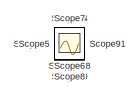
[diagram: root canvas - part 1/2, top left region]
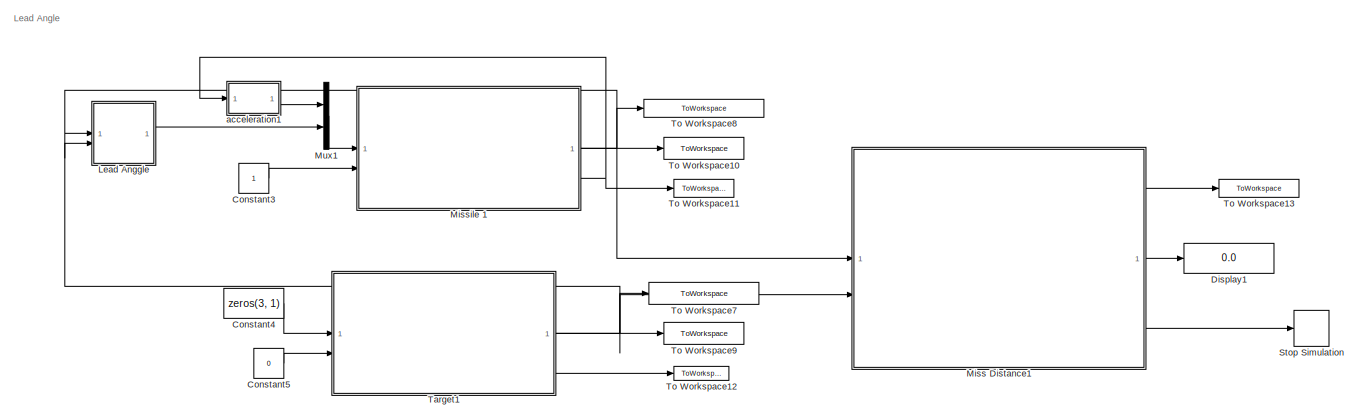
[diagram: root canvas - part 2/2, bottom center region]
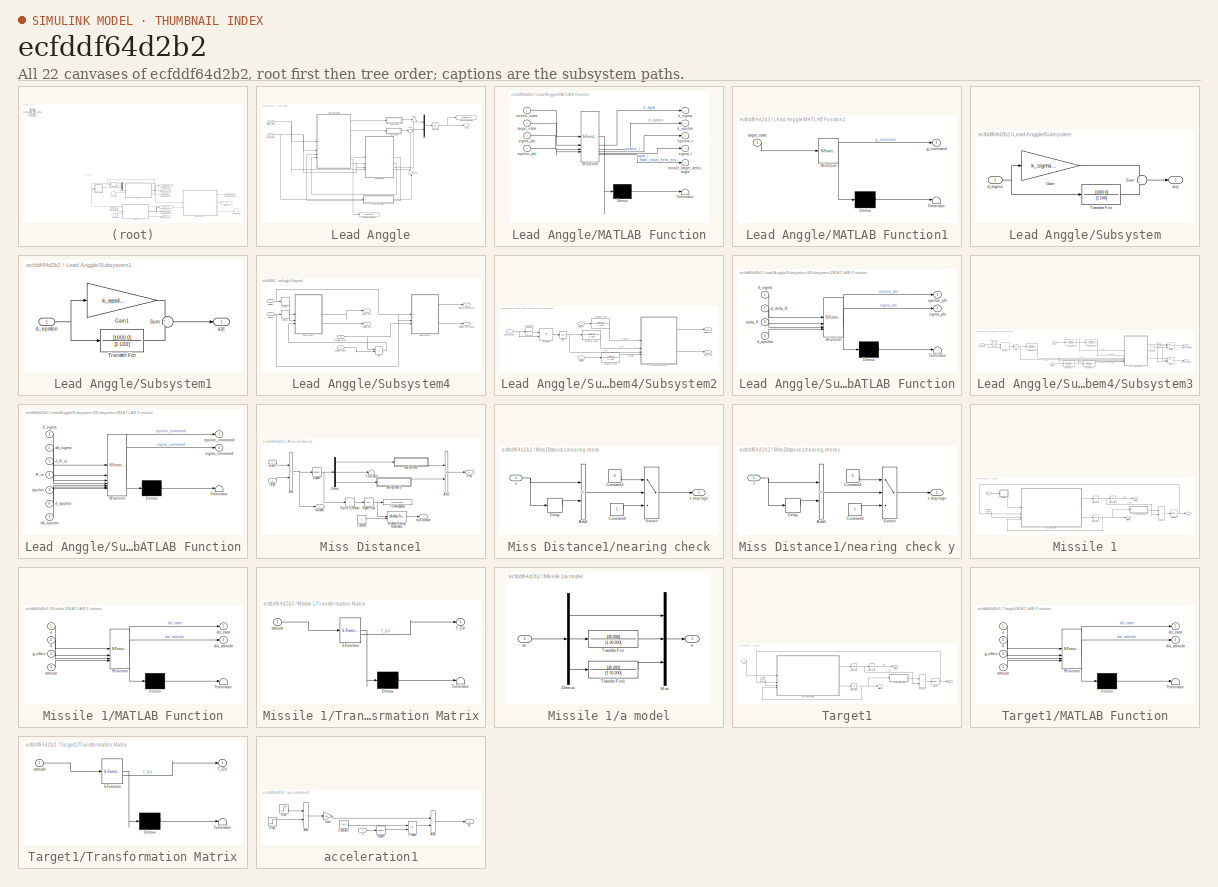
[diagram: thumbnail index - all 22 canvases of the model, root first then tree order]
MODEL slx_ecfddf64d2b2
KIND model
CONFIG AbsTol = auto
CONFIG EnableMultiTasking = off
CONFIG FixedStep = 0.002
CONFIG InitFcn = init; % init script
CONFIG MaxStep = auto
CONFIG MinStep = auto
CONFIG RelTol = 1e-3
CONFIG SampleTimeConstraint = Unconstrained
CONFIG SolverName = ode4
CONFIG StartTime = 0.0
CONFIG StopTime = inf
BLOCK [Constant] Constant3
BLOCK [Constant] Constant4
  Value = zeros(3, 1)
BLOCK [Constant] Constant5
  Value = 0
BLOCK [Display] Display1
  Decimation = 1
BLOCK [SubSystem] Lead Anggle
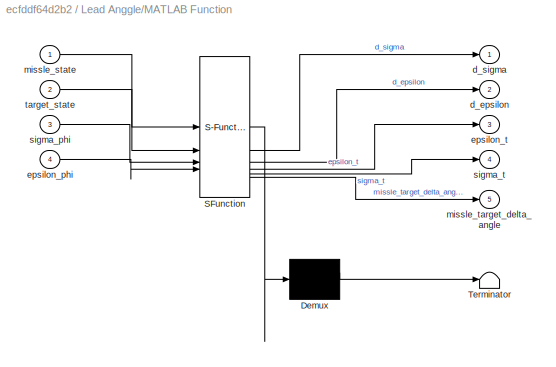
BLOCK [SubSystem] Lead Anggle/MATLAB Function
  ErrorFcn = Stateflow.Translate.translate
  LibrarySourceBlock = simulink/User-Defined\nFunctions/MATLAB Function
  PermitHierarchicalResolution = ExplicitOnly
  SFBlockType = MATLAB Function
  TreatAsAtomicUnit = on
BLOCK [Demux] Lead Anggle/MATLAB Function/ Demux 
  Outputs = 1
BLOCK [S-Function] Lead Anggle/MATLAB Function/ SFunction 
  EnableBusSupport = on
  FunctionName = sf_sfun
  PortCounts = [4 6]
  SFcnIsStateOwnerBlock = off
  SFunctionDeploymentMode = off
  Tag = Stateflow S-Function 14
BLOCK [Terminator] Lead Anggle/MATLAB Function/ Terminator 
BLOCK [Outport] Lead Anggle/MATLAB Function/d_epsilon
  Port = 2
BLOCK [Outport] Lead Anggle/MATLAB Function/d_sigma
BLOCK [Inport] Lead Anggle/MATLAB Function/epsilon_phi
  Port = 4
BLOCK [Outport] Lead Anggle/MATLAB Function/epsilon_t
  Port = 3
BLOCK [Inport] Lead Anggle/MATLAB Function/missle_state
BLOCK [Outport] Lead Anggle/MATLAB Function/missle_target_delta_angle
  Port = 5
BLOCK [Inport] Lead Anggle/MATLAB Function/sigma_phi
  Port = 3
BLOCK [Outport] Lead Anggle/MATLAB Function/sigma_t
  Port = 4
BLOCK [Inport] Lead Anggle/MATLAB Function/target_state
  Port = 2
BLOCK [SubSystem] Lead Anggle/MATLAB Function1
  ErrorFcn = Stateflow.Translate.translate
  LibrarySourceBlock = simulink/User-Defined\nFunctions/MATLAB Function
  PermitHierarchicalResolution = ExplicitOnly
  SFBlockType = MATLAB Function
  TreatAsAtomicUnit = on
BLOCK [Demux] Lead Anggle/MATLAB Function1/ Demux 
  Outputs = 1
BLOCK [S-Function] Lead Anggle/MATLAB Function1/ SFunction 
  EnableBusSupport = on
  FunctionName = sf_sfun
  PortCounts = [1 2]
  SFcnIsStateOwnerBlock = off
  SFunctionDeploymentMode = off
  Tag = Stateflow S-Function 15
BLOCK [Terminator] Lead Anggle/MATLAB Function1/ Terminator 
BLOCK [Outport] Lead Anggle/MATLAB Function1/g_command
BLOCK [Inport] Lead Anggle/MATLAB Function1/target_state
BLOCK [Mux] Lead Anggle/Mux
  DisplayOption = bar
  Inputs = 2
BLOCK [Saturate] Lead Anggle/Saturation
  LowerLimit = -5*9.81
  UpperLimit = 5*9.81
BLOCK [SubSystem] Lead Anggle/Subsystem
BLOCK [Gain] Lead Anggle/Subsystem/Gain
  Gain = k_sigma_lead_angle
BLOCK [Sum] Lead Anggle/Subsystem/Sum
  Inputs = +|+
BLOCK [TransferFcn] Lead Anggle/Subsystem/Transfer Fcn
  Denominator = [1 100]
  Numerator = [1000 0]
BLOCK [Outport] Lead Anggle/Subsystem/acy
BLOCK [Inport] Lead Anggle/Subsystem/d_sigma
BLOCK [SubSystem] Lead Anggle/Subsystem1
BLOCK [Gain] Lead Anggle/Subsystem1/Gain1
  Gain = k_epsilon_lead_angle
BLOCK [Sum] Lead Anggle/Subsystem1/Sum
  Inputs = +|+
BLOCK [TransferFcn] Lead Anggle/Subsystem1/Transfer Fcn
  Denominator = [1 100]
  Numerator = [1000 0]
BLOCK [Outport] Lead Anggle/Subsystem1/azc
BLOCK [Inport] Lead Anggle/Subsystem1/d_epsilon
BLOCK [SubSystem] Lead Anggle/Subsystem4
BLOCK [Sum] Lead Anggle/Subsystem4/Add
  IconShape = rectangular
  Inputs = -+
BLOCK [Delay] Lead Anggle/Subsystem4/Delay
  DelayLength = 1
  InputPortMap = u0
BLOCK [Delay] Lead Anggle/Subsystem4/Delay1
  DelayLength = 1
  InputPortMap = u0
BLOCK [SubSystem] Lead Anggle/Subsystem4/Subsystem2
BLOCK [SubSystem] Lead Anggle/Subsystem4/Subsystem2/MATLAB Function
  ErrorFcn = Stateflow.Translate.translate
  LibrarySourceBlock = simulink/User-Defined\nFunctions/MATLAB Function
  PermitHierarchicalResolution = ExplicitOnly
  SFBlockType = MATLAB Function
  TreatAsAtomicUnit = on
BLOCK [Demux] Lead Anggle/Subsystem4/Subsystem2/MATLAB Function/ Demux 
  Outputs = 1
BLOCK [S-Function] Lead Anggle/Subsystem4/Subsystem2/MATLAB Function/ SFunction 
  EnableBusSupport = on
  FunctionName = sf_sfun
  PortCounts = [4 3]
  SFcnIsStateOwnerBlock = off
  SFunctionDeploymentMode = off
  Tag = Stateflow S-Function 16
BLOCK [Terminator] Lead Anggle/Subsystem4/Subsystem2/MATLAB Function/ Terminator 
BLOCK [Inport] Lead Anggle/Subsystem4/Subsystem2/MATLAB Function/d_delta_R
  Port = 2
BLOCK [Inport] Lead Anggle/Subsystem4/Subsystem2/MATLAB Function/d_epsilon
  Port = 4
BLOCK [Inport] Lead Anggle/Subsystem4/Subsystem2/MATLAB Function/d_sigma
BLOCK [Inport] Lead Anggle/Subsystem4/Subsystem2/MATLAB Function/delta_R
  Port = 3
BLOCK [Outport] Lead Anggle/Subsystem4/Subsystem2/MATLAB Function/epsilon_phi
BLOCK [Outport] Lead Anggle/Subsystem4/Subsystem2/MATLAB Function/sigma_phi
  Port = 2
BLOCK [Product] Lead Anggle/Subsystem4/Subsystem2/Product
  Multiplication = Matrix(*)
BLOCK [Sqrt] Lead Anggle/Subsystem4/Subsystem2/Sqrt
BLOCK [TransferFcn] Lead Anggle/Subsystem4/Subsystem2/Transfer Fcn
  Denominator = [1 100]
  Numerator = [100 0]
BLOCK [TransferFcn] Lead Anggle/Subsystem4/Subsystem2/Transfer Fcn2
  Denominator = [1 100]
  Numerator = [100 0]
BLOCK [TransferFcn] Lead Anggle/Subsystem4/Subsystem2/Transfer Fcn4
  Denominator = [1 100]
  Numerator = [100 0]
BLOCK [Math] Lead Anggle/Subsystem4/Subsystem2/Transpose
  Operator = transpose
BLOCK [Inport] Lead Anggle/Subsystem4/Subsystem2/delta_state
  Port = 3
BLOCK [Inport] Lead Anggle/Subsystem4/Subsystem2/epsilon
BLOCK [Outport] Lead Anggle/Subsystem4/Subsystem2/epsilon phi
  Port = 2
BLOCK [Inport] Lead Anggle/Subsystem4/Subsystem2/sigma
  Port = 2
BLOCK [Outport] Lead Anggle/Subsystem4/Subsystem2/sigma phi
BLOCK [SubSystem] Lead Anggle/Subsystem4/Subsystem3
BLOCK [Clock] Lead Anggle/Subsystem4/Subsystem3/Clock
BLOCK [Constant] Lead Anggle/Subsystem4/Subsystem3/Constant
  Value = 0
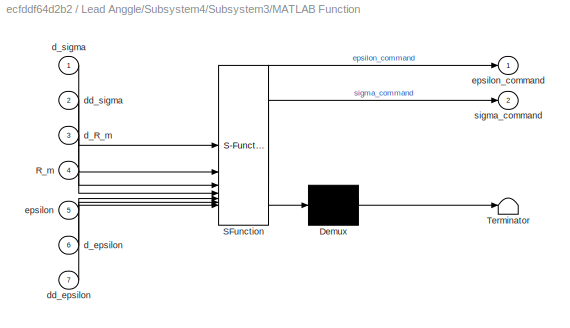
BLOCK [SubSystem] Lead Anggle/Subsystem4/Subsystem3/MATLAB Function
  ErrorFcn = Stateflow.Translate.translate
  LibrarySourceBlock = simulink/User-Defined\nFunctions/MATLAB Function
  PermitHierarchicalResolution = ExplicitOnly
  SFBlockType = MATLAB Function
  TreatAsAtomicUnit = on
BLOCK [Demux] Lead Anggle/Subsystem4/Subsystem3/MATLAB Function/ Demux 
  Outputs = 1
BLOCK [S-Function] Lead Anggle/Subsystem4/Subsystem3/MATLAB Function/ SFunction 
  EnableBusSupport = on
  FunctionName = sf_sfun
  PortCounts = [7 3]
  SFcnIsStateOwnerBlock = off
  SFunctionDeploymentMode = off
  Tag = Stateflow S-Function 11
BLOCK [Terminator] Lead Anggle/Subsystem4/Subsystem3/MATLAB Function/ Terminator 
BLOCK [Inport] Lead Anggle/Subsystem4/Subsystem3/MATLAB Function/R_m
  Port = 4
BLOCK [Inport] Lead Anggle/Subsystem4/Subsystem3/MATLAB Function/d_R_m
  Port = 3
BLOCK [Inport] Lead Anggle/Subsystem4/Subsystem3/MATLAB Function/d_epsilon
  Port = 6
BLOCK [Inport] Lead Anggle/Subsystem4/Subsystem3/MATLAB Function/d_sigma
BLOCK [Inport] Lead Anggle/Subsystem4/Subsystem3/MATLAB Function/dd_epsilon
  Port = 7
BLOCK [Inport] Lead Anggle/Subsystem4/Subsystem3/MATLAB Function/dd_sigma
  Port = 2
BLOCK [Inport] Lead Anggle/Subsystem4/Subsystem3/MATLAB Function/epsilon
  Port = 5
BLOCK [Outport] Lead Anggle/Subsystem4/Subsystem3/MATLAB Function/epsilon_command
BLOCK [Outport] Lead Anggle/Subsystem4/Subsystem3/MATLAB Function/sigma_command
  Port = 2
BLOCK [Product] Lead Anggle/Subsystem4/Subsystem3/Product
  Multiplication = Matrix(*)
BLOCK [Sqrt] Lead Anggle/Subsystem4/Subsystem3/Sqrt
BLOCK [Switch] Lead Anggle/Subsystem4/Subsystem3/Switch
  Criteria = u2 > Threshold
  InputSameDT = off
  SaturateOnIntegerOverflow = off
  Threshold = 0.2
BLOCK [Switch] Lead Anggle/Subsystem4/Subsystem3/Switch1
  Criteria = u2 > Threshold
  InputSameDT = off
  SaturateOnIntegerOverflow = off
  Threshold = 0.2
BLOCK [TransferFcn] Lead Anggle/Subsystem4/Subsystem3/Transfer Fcn
  Denominator = [1 100]
  Numerator = [100 0]
BLOCK [TransferFcn] Lead Anggle/Subsystem4/Subsystem3/Transfer Fcn1
  Denominator = [1 100]
  Numerator = [100 0]
BLOCK [TransferFcn] Lead Anggle/Subsystem4/Subsystem3/Transfer Fcn2
  Denominator = [1 100]
  Numerator = [100 0]
BLOCK [TransferFcn] Lead Anggle/Subsystem4/Subsystem3/Transfer Fcn3
  Denominator = [1 100]
  Numerator = [100 0]
BLOCK [TransferFcn] Lead Anggle/Subsystem4/Subsystem3/Transfer Fcn4
  Denominator = [1 100]
  Numerator = [100 0]
BLOCK [Math] Lead Anggle/Subsystem4/Subsystem3/Transpose
  Operator = transpose
BLOCK [Inport] Lead Anggle/Subsystem4/Subsystem3/epsilon
BLOCK [Outport] Lead Anggle/Subsystem4/Subsystem3/epsilon command
  Port = 2
BLOCK [Inport] Lead Anggle/Subsystem4/Subsystem3/sigma
  Port = 2
BLOCK [Outport] Lead Anggle/Subsystem4/Subsystem3/sigma command
BLOCK [Inport] Lead Anggle/Subsystem4/Subsystem3/target_state
  Port = 3
BLOCK [Inport] Lead Anggle/Subsystem4/epsilon
BLOCK [Outport] Lead Anggle/Subsystem4/epsilon command
  Port = 4
BLOCK [Outport] Lead Anggle/Subsystem4/epsilon phi
  Port = 2
BLOCK [Inport] Lead Anggle/Subsystem4/missle state
  Port = 4
BLOCK [Inport] Lead Anggle/Subsystem4/sigma
  Port = 2
BLOCK [Outport] Lead Anggle/Subsystem4/sigma command
  Port = 3
BLOCK [Outport] Lead Anggle/Subsystem4/sigma phi
BLOCK [Inport] Lead Anggle/Subsystem4/target state
  Port = 3
BLOCK [Sum] Lead Anggle/Sum
  Inputs = |++
BLOCK [Sum] Lead Anggle/Sum1
  Inputs = ++|
  NameLocation = right
BLOCK [Sum] Lead Anggle/Sum2
  Inputs = |++
BLOCK [ToWorkspace] Lead Anggle/To Workspace1
  FixptAsFi = on
  MaxDataPoints = inf
  SampleTime = -1
  Save2DSignal = 2-D array (concatenate along first dimension)
  SaveFormat = Timeseries
  VariableName = beam_angle
BLOCK [ToWorkspace] Lead Anggle/To Workspace6
  FixptAsFi = on
  MaxDataPoints = inf
  SampleTime = -1
  Save2DSignal = 2-D array (concatenate along first dimension)
  SaveFormat = Timeseries
  VariableName = command_lead_angle
BLOCK [Outport] Lead Anggle/ay, az
BLOCK [Inport] Lead Anggle/missle_state
BLOCK [Inport] Lead Anggle/target_state
  Port = 2
BLOCK [SubSystem] Miss Distance1
BLOCK [Logic] Miss Distance1/AND
  AllPortsSameDT = off
  IconShape = distinctive
  OutDataTypeStr = boolean
BLOCK [Sum] Miss Distance1/Add
  IconShape = rectangular
  Inputs = +-
BLOCK [Constant] Miss Distance1/Constant
  Value = 0
BLOCK [Demux] Miss Distance1/Demux
  Outputs = 3
BLOCK [Reference] Miss Distance1/MinMax Running Resettable  REF=simulink/Math
Operations/MinMax
Running
Resettable
  SourceBlock = simulink/Math\nOperations/MinMax\nRunning\nResettable
  SourceType = MinMax Running Resettable
BLOCK [Math] Miss Distance1/Square
  Operator = square
BLOCK [Sqrt] Miss Distance1/Square Root
BLOCK [Outport] Miss Distance1/Stop
  Port = 3
BLOCK [Sum] Miss Distance1/Sum of Elements
  IconShape = rectangular
  Inputs = +
BLOCK [Terminator] Miss Distance1/Terminator
BLOCK [ToWorkspace] Miss Distance1/To Workspace6
  FixptAsFi = on
  MaxDataPoints = inf
  SampleTime = -1
  Save2DSignal = 2-D array (concatenate along first dimension)
  SaveFormat = Timeseries
  VariableName = distance_lead_angle
BLOCK [Outport] Miss Distance1/distance
BLOCK [Outport] Miss Distance1/miss distance
  Port = 2
BLOCK [Inport] Miss Distance1/missle
BLOCK [SubSystem] Miss Distance1/nearing check
BLOCK [SubSystem] Miss Distance1/nearing check y
BLOCK [Sum] Miss Distance1/nearing check y/Add1
  IconShape = rectangular
  Inputs = -+
BLOCK [Constant] Miss Distance1/nearing check y/Constant3
  Value = 0
BLOCK [Constant] Miss Distance1/nearing check y/Constant4
BLOCK [Delay] Miss Distance1/nearing check y/Delay
  DelayLength = 1
  InitialCondition = inf
  InputPortMap = u0
BLOCK [Switch] Miss Distance1/nearing check y/Switch
  Criteria = u2 > Threshold
  InputSameDT = off
  SaturateOnIntegerOverflow = off
BLOCK [Inport] Miss Distance1/nearing check y/z
BLOCK [Outport] Miss Distance1/nearing check y/z stop logic
BLOCK [Sum] Miss Distance1/nearing check/Add1
  IconShape = rectangular
  Inputs = -+
BLOCK [Constant] Miss Distance1/nearing check/Constant3
  Value = 0
BLOCK [Constant] Miss Distance1/nearing check/Constant4
BLOCK [Delay] Miss Distance1/nearing check/Delay
  DelayLength = 1
  InitialCondition = inf
  InputPortMap = u0
BLOCK [Switch] Miss Distance1/nearing check/Switch
  Criteria = u2 > Threshold
  InputSameDT = off
  SaturateOnIntegerOverflow = off
BLOCK [Inport] Miss Distance1/nearing check/x
BLOCK [Outport] Miss Distance1/nearing check/x stop logic
BLOCK [Inport] Miss Distance1/target
  Port = 2
BLOCK [SubSystem] Missile 1
BLOCK [Integrator] Missile 1/Integrator
  InitialCondition = d_state_m
BLOCK [Integrator] Missile 1/Integrator1
  InitialCondition = state_m0
BLOCK [Integrator] Missile 1/Integrator2
  InitialCondition = attitude_m0
BLOCK [SubSystem] Missile 1/MATLAB Function
  ErrorFcn = Stateflow.Translate.translate
  LibrarySourceBlock = simulink/User-Defined\nFunctions/MATLAB Function
  PermitHierarchicalResolution = ExplicitOnly
  SFBlockType = MATLAB Function
  TreatAsAtomicUnit = on
BLOCK [Demux] Missile 1/MATLAB Function/ Demux 
  Outputs = 1
BLOCK [S-Function] Missile 1/MATLAB Function/ SFunction 
  EnableBusSupport = on
  FunctionName = sf_sfun
  PortCounts = [4 3]
  SFcnIsStateOwnerBlock = off
  SFunctionDeploymentMode = off
  Tag = Stateflow S-Function 5
BLOCK [Terminator] Missile 1/MATLAB Function/ Terminator 
BLOCK [Inport] Missile 1/MATLAB Function/V
  Port = 2
BLOCK [Inport] Missile 1/MATLAB Function/a
BLOCK [Inport] Missile 1/MATLAB Function/attitude
  Port = 4
BLOCK [Outport] Missile 1/MATLAB Function/dd_state
BLOCK [Outport] Missile 1/MATLAB Function/dot_attitude
  Port = 2
BLOCK [Inport] Missile 1/MATLAB Function/g_effect
  Port = 3
BLOCK [Product] Missile 1/Product
  Multiplication = Matrix(*)
BLOCK [Selector] Missile 1/Selector
  IndexOptions = Index vector (dialog)
  Indices = [1]
  InputPortWidth = 3
  OutputSizes = 1
BLOCK [SubSystem] Missile 1/Transformation Matrix
  ErrorFcn = Stateflow.Translate.translate
  LibrarySourceBlock = simulink/User-Defined\nFunctions/MATLAB Function
  PermitHierarchicalResolution = ExplicitOnly
  SFBlockType = MATLAB Function
  TreatAsAtomicUnit = on
BLOCK [Demux] Missile 1/Transformation Matrix/ Demux 
  Outputs = 1
BLOCK [S-Function] Missile 1/Transformation Matrix/ SFunction 
  EnableBusSupport = on
  FunctionName = sf_sfun
  PortCounts = [1 2]
  SFcnIsStateOwnerBlock = off
  SFunctionDeploymentMode = off
  Tag = Stateflow S-Function 6
BLOCK [Terminator] Missile 1/Transformation Matrix/ Terminator 
BLOCK [Outport] Missile 1/Transformation Matrix/T_GV
BLOCK [Inport] Missile 1/Transformation Matrix/attitude
BLOCK [Outport] Missile 1/V
  Port = 3
BLOCK [Inport] Missile 1/a
BLOCK [SubSystem] Missile 1/a model
BLOCK [Demux] Missile 1/a model/Demux
  Outputs = 3
BLOCK [Mux] Missile 1/a model/Mux
  DisplayOption = bar
  Inputs = 3
BLOCK [TransferFcn] Missile 1/a model/Transfer Fcn
  Denominator = [1 30 200]
  Numerator = [30 200]
BLOCK [TransferFcn] Missile 1/a model/Transfer Fcn1
  Denominator = [1 30 200]
  Numerator = [30 200]
BLOCK [Outport] Missile 1/a model/a
BLOCK [Inport] Missile 1/a model/ac
BLOCK [Outport] Missile 1/attitude
  Port = 2
BLOCK [Inport] Missile 1/g_effect
  Port = 2
BLOCK [Outport] Missile 1/state
BLOCK [Mux] Mux1
  DisplayOption = bar
  Inputs = 2
BLOCK [Scope] Scope
  Floating = off
  IOType = viewer
  NumInputPorts = 1
  ScopeSpecificationString = Simulink.scopes.TimeScopeBlockCfg('CurrentConfiguration', extmgr.ConfigurationSet(extmgr.Configuration('Core','General UI',true),extmgr.Configuration('Core','Source UI',true),extmgr.Configuration('Sources','WiredSimulink',true,'DataLoggingVariableName','ScopeData1'),extmgr.Configuration('Visuals','Time Domain',true,'SerializedDisplays',{struct('MinYLimReal','-9095.33525','MaxYLimReal','1858.01721'...<+1452ch>
BLOCK [Scope] Scope1
  Floating = off
  IOType = viewer
  NumInputPorts = 1
  ScopeSpecificationString = Simulink.scopes.TimeScopeBlockCfg('CurrentConfiguration', extmgr.ConfigurationSet(extmgr.Configuration('Core','General UI',true),extmgr.Configuration('Core','Source UI',true),extmgr.Configuration('Sources','WiredSimulink',true,'DataLoggingVariableName','ScopeData1'),extmgr.Configuration('Visuals','Time Domain',true,'SerializedDisplays',{struct('MinYLimReal','-72.81517','MaxYLimReal','655.33657','Y...<+1392ch>
BLOCK [Scope] Scope10
  Floating = off
  IOType = viewer
  NumInputPorts = 1
  ScopeSpecificationString = Simulink.scopes.TimeScopeBlockCfg('CurrentConfiguration', extmgr.ConfigurationSet(extmgr.Configuration('Core','General UI',true),extmgr.Configuration('Core','Source UI',true),extmgr.Configuration('Sources','WiredSimulink',true,'DataLoggingVariableName','ScopeData10'),extmgr.Configuration('Visuals','Time Domain',true,'SerializedDisplays',{struct('MinYLimReal','-0.3927','MaxYLimReal','3.53429','YLab...<+1358ch>
BLOCK [Scope] Scope11
  Floating = off
  IOType = viewer
  NumInputPorts = 1
  ScopeSpecificationString = Simulink.scopes.TimeScopeBlockCfg('CurrentConfiguration', extmgr.ConfigurationSet(extmgr.Configuration('Core','General UI',true),extmgr.Configuration('Core','Source UI',true),extmgr.Configuration('Sources','WiredSimulink',true,'DataLoggingVariableName','ScopeData11'),extmgr.Configuration('Visuals','Time Domain',true,'SerializedDisplays',{struct('MinYLimReal','200.00000','MaxYLimReal','400.00000','...<+1374ch>
BLOCK [Scope] Scope12
  Floating = off
  IOType = viewer
  NumInputPorts = 1
  ScopeSpecificationString = Simulink.scopes.TimeScopeBlockCfg('CurrentConfiguration', extmgr.ConfigurationSet(extmgr.Configuration('Core','General UI',true),extmgr.Configuration('Core','Source UI',true),extmgr.Configuration('Sources','WiredSimulink',true,'DataLoggingVariableName','ScopeData1'),extmgr.Configuration('Visuals','Time Domain',true,'SerializedDisplays',{struct('MinYLimReal','-604.06326','MaxYLimReal','5436.56932',...<+1459ch>
BLOCK [Scope] Scope13
  Floating = off
  IOType = viewer
  NumInputPorts = 1
  ScopeSpecificationString = Simulink.scopes.TimeScopeBlockCfg('CurrentConfiguration', extmgr.ConfigurationSet(extmgr.Configuration('Core','General UI',true),extmgr.Configuration('Core','Source UI',true),extmgr.Configuration('Sources','WiredSimulink',true,'DataLoggingVariableName','ScopeData1'),extmgr.Configuration('Visuals','Time Domain',true,'SerializedDisplays',{struct('MinYLimReal','-72.57557','MaxYLimReal','653.1801','YL...<+1403ch>
BLOCK [Scope] Scope14
  Floating = off
  IOType = viewer
  NumInputPorts = 1
  ScopeSpecificationString = Simulink.scopes.TimeScopeBlockCfg('CurrentConfiguration', extmgr.ConfigurationSet(extmgr.Configuration('Core','General UI',true),extmgr.Configuration('Core','Source UI',true),extmgr.Configuration('Sources','WiredSimulink',true,'DataLoggingVariableName','ScopeData2'),extmgr.Configuration('Visuals','Time Domain',true,'SerializedDisplays',{struct('MinYLimReal','-0.0000000000000000175','MaxYLimReal','...<+1510ch>
BLOCK [Scope] Scope15
  Floating = off
  IOType = viewer
  NumInputPorts = 1
  ScopeSpecificationString = Simulink.scopes.TimeScopeBlockCfg('CurrentConfiguration', extmgr.ConfigurationSet(extmgr.Configuration('Core','General UI',true),extmgr.Configuration('Core','Source UI',true),extmgr.Configuration('Sources','WiredSimulink',true,'DataLoggingVariableName','ScopeData2'),extmgr.Configuration('Visuals','Time Domain',true,'SerializedDisplays',{struct('MinYLimReal','-0.02332','MaxYLimReal','-0.02251','YLa...<+1398ch>
BLOCK [Scope] Scope16
  Floating = off
  IOType = viewer
  NumInputPorts = 1
  ScopeSpecificationString = Simulink.scopes.TimeScopeBlockCfg('CurrentConfiguration', extmgr.ConfigurationSet(extmgr.Configuration('Core','General UI',true),extmgr.Configuration('Core','Source UI',true),extmgr.Configuration('Sources','WiredSimulink',true,'DataLoggingVariableName','ScopeData4'),extmgr.Configuration('Visuals','Time Domain',true,'SerializedDisplays',{struct('MinYLimReal','-6.13125','MaxYLimReal','55.18125','YLa...<+1415ch>
BLOCK [Scope] Scope17
  Floating = off
  IOType = viewer
  NumInputPorts = 1
  ScopeSpecificationString = Simulink.scopes.TimeScopeBlockCfg('CurrentConfiguration', extmgr.ConfigurationSet(extmgr.Configuration('Core','General UI',true),extmgr.Configuration('Core','Source UI',true),extmgr.Configuration('Sources','WiredSimulink',true,'DataLoggingVariableName','ScopeData5'),extmgr.Configuration('Visuals','Time Domain',true,'SerializedDisplays',{struct('MinYLimReal','5491.82041','MaxYLimReal','8883.13523',...<+1409ch>
BLOCK [Scope] Scope18
  Floating = off
  IOType = viewer
  NumInputPorts = 1
  ScopeSpecificationString = Simulink.scopes.TimeScopeBlockCfg('CurrentConfiguration', extmgr.ConfigurationSet(extmgr.Configuration('Core','General UI',true),extmgr.Configuration('Core','Source UI',true),extmgr.Configuration('Sources','WiredSimulink',true,'DataLoggingVariableName','ScopeData6'),extmgr.Configuration('Visuals','Time Domain',true,'SerializedDisplays',{struct('MinYLimReal','-0.000000000000000009','MaxYLimReal','0...<+1493ch>
BLOCK [Scope] Scope2
  Floating = off
  IOType = viewer
  NumInputPorts = 1
  ScopeSpecificationString = Simulink.scopes.TimeScopeBlockCfg('CurrentConfiguration', extmgr.ConfigurationSet(extmgr.Configuration('Core','General UI',true),extmgr.Configuration('Core','Source UI',true),extmgr.Configuration('Sources','WiredSimulink',true,'DataLoggingVariableName','ScopeData1'),extmgr.Configuration('Visuals','Time Domain',true,'SerializedDisplays',{struct('MinYLimReal','-6.13125','MaxYLimReal','55.18125','YLa...<+1388ch>
BLOCK [Scope] Scope20
  Floating = off
  IOType = viewer
  NumInputPorts = 1
  ScopeSpecificationString = Simulink.scopes.TimeScopeBlockCfg('CurrentConfiguration', extmgr.ConfigurationSet(extmgr.Configuration('Core','General UI',true),extmgr.Configuration('Core','Source UI',true),extmgr.Configuration('Sources','WiredSimulink',true,'DataLoggingVariableName','ScopeData8'),extmgr.Configuration('Visuals','Time Domain',true,'SerializedDisplays',{struct('MinYLimReal','-4.47062','MaxYLimReal','40.36014','YLa...<+1397ch>
BLOCK [Scope] Scope21
  Floating = off
  IOType = viewer
  NumInputPorts = 1
  ScopeSpecificationString = Simulink.scopes.TimeScopeBlockCfg('CurrentConfiguration', extmgr.ConfigurationSet(extmgr.Configuration('Core','General UI',true),extmgr.Configuration('Core','Source UI',true),extmgr.Configuration('Sources','WiredSimulink',true,'DataLoggingVariableName','ScopeData9'),extmgr.Configuration('Visuals','Time Domain',true,'SerializedDisplays',{struct('MinYLimReal','-994.25187','MaxYLimReal','4096.81321',...<+1412ch>
BLOCK [Scope] Scope22
  Floating = off
  IOType = viewer
  NumInputPorts = 1
  ScopeSpecificationString = Simulink.scopes.TimeScopeBlockCfg('CurrentConfiguration', extmgr.ConfigurationSet(extmgr.Configuration('Core','General UI',true),extmgr.Configuration('Core','Source UI',true),extmgr.Configuration('Sources','WiredSimulink',true,'DataLoggingVariableName','ScopeData10'),extmgr.Configuration('Visuals','Time Domain',true,'SerializedDisplays',{struct('MinYLimReal','-0.00000000000000001','MaxYLimReal','0...<+1508ch>
BLOCK [Scope] Scope23
  Floating = off
  IOType = viewer
  NumInputPorts = 1
  ScopeSpecificationString = Simulink.scopes.TimeScopeBlockCfg('CurrentConfiguration', extmgr.ConfigurationSet(extmgr.Configuration('Core','General UI',true),extmgr.Configuration('Core','Source UI',true),extmgr.Configuration('Sources','WiredSimulink',true,'DataLoggingVariableName','ScopeData11'),extmgr.Configuration('Visuals','Time Domain',true,'SerializedDisplays',{struct('MinYLimReal','-0.000000000000000001','MaxYLimReal','...<+1496ch>
BLOCK [Scope] Scope24
  Floating = off
  IOType = viewer
  NumInputPorts = 1
  ScopeSpecificationString = Simulink.scopes.TimeScopeBlockCfg('CurrentConfiguration', extmgr.ConfigurationSet(extmgr.Configuration('Core','General UI',true),extmgr.Configuration('Core','Source UI',true),extmgr.Configuration('Sources','WiredSimulink',true,'DataLoggingVariableName','ScopeData1'),extmgr.Configuration('Visuals','Time Domain',true,'SerializedDisplays',{struct('MinYLimReal','-107115.79279','MaxYLimReal','961235.50...<+1427ch>
BLOCK [Scope] Scope3
  Floating = off
  IOType = viewer
  NumInputPorts = 1
  ScopeSpecificationString = Simulink.scopes.TimeScopeBlockCfg('CurrentConfiguration', extmgr.ConfigurationSet(extmgr.Configuration('Core','General UI',true),extmgr.Configuration('Core','Source UI',true),extmgr.Configuration('Sources','WiredSimulink',true,'DataLoggingVariableName','ScopeData1'),extmgr.Configuration('Visuals','Time Domain',true,'SerializedDisplays',{struct('MinYLimReal','-337.5','MaxYLimReal','37.5','YLabelRea...<+1380ch>
BLOCK [Scope] Scope4
  Floating = off
  IOType = viewer
  NumInputPorts = 1
  ScopeSpecificationString = Simulink.scopes.TimeScopeBlockCfg('CurrentConfiguration', extmgr.ConfigurationSet(extmgr.Configuration('Core','General UI',true),extmgr.Configuration('Core','Source UI',true),extmgr.Configuration('Sources','WiredSimulink',true,'DataLoggingVariableName','ScopeData2'),extmgr.Configuration('Visuals','Time Domain',true,'SerializedDisplays',{struct('MinYLimReal','-337.5','MaxYLimReal','37.5','YLabelRea...<+1380ch>
BLOCK [Scope] Scope5
  Floating = off
  IOType = viewer
  NumInputPorts = 1
  ScopeSpecificationString = Simulink.scopes.TimeScopeBlockCfg('CurrentConfiguration', extmgr.ConfigurationSet(extmgr.Configuration('Core','General UI',true),extmgr.Configuration('Core','Source UI',true),extmgr.Configuration('Sources','WiredSimulink',true,'DataLoggingVariableName','ScopeData3'),extmgr.Configuration('Visuals','Time Domain',true,'SerializedDisplays',{struct('MinYLimReal','-1.00000','MaxYLimReal','1.00000','YLab...<+1359ch>
BLOCK [Scope] Scope6
  Floating = off
  IOType = viewer
  NumInputPorts = 1
  ScopeSpecificationString = Simulink.scopes.TimeScopeBlockCfg('CurrentConfiguration', extmgr.ConfigurationSet(extmgr.Configuration('Core','General UI',true),extmgr.Configuration('Core','Source UI',true),extmgr.Configuration('Sources','WiredSimulink',true,'DataLoggingVariableName','ScopeData6'),extmgr.Configuration('Visuals','Time Domain',true,'SerializedDisplays',{struct('MinYLimReal','-614.44146','MaxYLimReal','5529.9731','...<+1399ch>
BLOCK [Scope] Scope7
  Floating = off
  IOType = viewer
  NumInputPorts = 1
  ScopeSpecificationString = Simulink.scopes.TimeScopeBlockCfg('CurrentConfiguration', extmgr.ConfigurationSet(extmgr.Configuration('Core','General UI',true),extmgr.Configuration('Core','Source UI',true),extmgr.Configuration('Sources','WiredSimulink',true,'DataLoggingVariableName','ScopeData7'),extmgr.Configuration('Visuals','Time Domain',true,'SerializedDisplays',{struct('MinYLimReal','-0.11496','MaxYLimReal','1.03464','YLab...<+1359ch>
BLOCK [Scope] Scope8
  Floating = off
  IOType = viewer
  NumInputPorts = 1
  ScopeSpecificationString = Simulink.scopes.TimeScopeBlockCfg('CurrentConfiguration', extmgr.ConfigurationSet(extmgr.Configuration('Core','General UI',true),extmgr.Configuration('Core','Source UI',true),extmgr.Configuration('Sources','WiredSimulink',true,'DataLoggingVariableName','ScopeData8'),extmgr.Configuration('Visuals','Time Domain',true,'SerializedDisplays',{struct('MinYLimReal','412.19771','MaxYLimReal','425.81202','Y...<+1373ch>
BLOCK [Scope] Scope9
  Floating = off
  IOType = viewer
  NumInputPorts = 1
  ScopeSpecificationString = Simulink.scopes.TimeScopeBlockCfg('CurrentConfiguration', extmgr.ConfigurationSet(extmgr.Configuration('Core','General UI',true),extmgr.Configuration('Core','Source UI',true),extmgr.Configuration('Sources','WiredSimulink',true,'DataLoggingVariableName','ScopeData9'),extmgr.Configuration('Visuals','Time Domain',true,'SerializedDisplays',{struct('MinYLimReal','-625.00000','MaxYLimReal','5625.00000',...<+1406ch>
BLOCK [Stop] Stop Simulation
BLOCK [SubSystem] Target1
BLOCK [Integrator] Target1/Integrator
  InitialCondition = d_state_t
BLOCK [Integrator] Target1/Integrator1
  InitialCondition = state_t0
BLOCK [Integrator] Target1/Integrator2
  InitialCondition = attitude_t0
BLOCK [SubSystem] Target1/MATLAB Function
  ErrorFcn = Stateflow.Translate.translate
  LibrarySourceBlock = simulink/User-Defined\nFunctions/MATLAB Function
  PermitHierarchicalResolution = ExplicitOnly
  SFBlockType = MATLAB Function
  TreatAsAtomicUnit = on
BLOCK [Demux] Target1/MATLAB Function/ Demux 
  Outputs = 1
BLOCK [S-Function] Target1/MATLAB Function/ SFunction 
  EnableBusSupport = on
  FunctionName = sf_sfun
  PortCounts = [4 3]
  SFcnIsStateOwnerBlock = off
  SFunctionDeploymentMode = off
  Tag = Stateflow S-Function 9
BLOCK [Terminator] Target1/MATLAB Function/ Terminator 
BLOCK [Inport] Target1/MATLAB Function/V
  Port = 2
BLOCK [Inport] Target1/MATLAB Function/a
BLOCK [Inport] Target1/MATLAB Function/attitude
  Port = 4
BLOCK [Outport] Target1/MATLAB Function/dd_state
BLOCK [Outport] Target1/MATLAB Function/dot_attitude
  Port = 2
BLOCK [Inport] Target1/MATLAB Function/g_effect
  Port = 3
BLOCK [Product] Target1/Product
  Multiplication = Matrix(*)
BLOCK [Selector] Target1/Selector
  IndexOptions = Index vector (dialog)
  Indices = [1]
  InputPortWidth = 3
  OutputSizes = 1
BLOCK [SubSystem] Target1/Transformation Matrix
  ErrorFcn = Stateflow.Translate.translate
  LibrarySourceBlock = simulink/User-Defined\nFunctions/MATLAB Function
  PermitHierarchicalResolution = ExplicitOnly
  SFBlockType = MATLAB Function
  TreatAsAtomicUnit = on
BLOCK [Demux] Target1/Transformation Matrix/ Demux 
  Outputs = 1
BLOCK [S-Function] Target1/Transformation Matrix/ SFunction 
  EnableBusSupport = on
  FunctionName = sf_sfun
  PortCounts = [1 2]
  SFcnIsStateOwnerBlock = off
  SFunctionDeploymentMode = off
  Tag = Stateflow S-Function 10
BLOCK [Terminator] Target1/Transformation Matrix/ Terminator 
BLOCK [Outport] Target1/Transformation Matrix/T_GV
BLOCK [Inport] Target1/Transformation Matrix/attitude
BLOCK [Outport] Target1/V
  Port = 3
BLOCK [Inport] Target1/ac
BLOCK [Outport] Target1/attitude
  Port = 2
BLOCK [Inport] Target1/g_effect
  Port = 2
BLOCK [Outport] Target1/state
BLOCK [ToWorkspace] To Workspace10
  Commented = on
  FixptAsFi = on
  MaxDataPoints = inf
  SampleTime = -1
  Save2DSignal = 2-D array (concatenate along first dimension)
  SaveFormat = Timeseries
  VariableName = missle_attitude1
BLOCK [ToWorkspace] To Workspace11
  Commented = on
  FixptAsFi = on
  MaxDataPoints = inf
  SampleTime = -1
  Save2DSignal = 2-D array (concatenate along first dimension)
  SaveFormat = Timeseries
  VariableName = V_missle1
BLOCK [ToWorkspace] To Workspace12
  Commented = on
  FixptAsFi = on
  MaxDataPoints = inf
  SampleTime = -1
  Save2DSignal = 2-D array (concatenate along first dimension)
  SaveFormat = Timeseries
  VariableName = V_target1
BLOCK [ToWorkspace] To Workspace13
  Commented = on
  FixptAsFi = on
  MaxDataPoints = inf
  SampleTime = -1
  Save2DSignal = 2-D array (concatenate along first dimension)
  SaveFormat = Timeseries
  VariableName = target_distance1
BLOCK [ToWorkspace] To Workspace7
  FixptAsFi = on
  MaxDataPoints = inf
  SampleTime = -1
  Save2DSignal = 2-D array (concatenate along first dimension)
  SaveFormat = Timeseries
  VariableName = target_state_lead_angle
BLOCK [ToWorkspace] To Workspace8
  FixptAsFi = on
  MaxDataPoints = inf
  SampleTime = -1
  Save2DSignal = 2-D array (concatenate along first dimension)
  SaveFormat = Timeseries
  VariableName = missle_state_lead_angle
BLOCK [ToWorkspace] To Workspace9
  Commented = on
  FixptAsFi = on
  MaxDataPoints = inf
  SampleTime = -1
  Save2DSignal = 2-D array (concatenate along first dimension)
  SaveFormat = Timeseries
  VariableName = target_attitude
BLOCK [SubSystem] acceleration1
BLOCK [Sum] acceleration1/Add
  IconShape = rectangular
BLOCK [Sum] acceleration1/Add1
  IconShape = rectangular
  Inputs = +-
BLOCK [Constant] acceleration1/Constant1
  Value = 1.5e-4
BLOCK [Gain] acceleration1/Gain
  Gain = 300
BLOCK [Product] acceleration1/Product
BLOCK [Math] acceleration1/Square
  Operator = square
BLOCK [Step] acceleration1/Step
  After = -1
  SampleTime = 0
  Time = 3
BLOCK [Step] acceleration1/Step1
  SampleTime = 0
  Time = 0
BLOCK [Inport] acceleration1/V
BLOCK [Outport] acceleration1/ax
ANNOTATION (root): Lead Angle
LINE Constant3:1 -> Missile 1:2
LINE Constant4:1 -> Target1:1
LINE Constant5:1 -> Target1:2
LINE Lead Anggle/MATLAB Function1:1 -> Lead Anggle/Sum1:2
LINE Lead Anggle/MATLAB Function:1 -> Lead Anggle/Subsystem:1
LINE Lead Anggle/MATLAB Function:2 -> Lead Anggle/Subsystem1:1
LINE Lead Anggle/MATLAB Function:3 -> Lead Anggle/Subsystem4:1
LINE Lead Anggle/MATLAB Function:4 -> Lead Anggle/Subsystem4:2
LINE Lead Anggle/MATLAB Function:5 -> Lead Anggle/To Workspace1:1
LINE Lead Anggle/Mux:1 -> Lead Anggle/Saturation:1
NET Lead Anggle/Saturation:1 -> Lead Anggle/To Workspace6:1, Lead Anggle/ay, az:1
LINE Lead Anggle/Subsystem/Gain:1 -> Lead Anggle/Subsystem/Sum:1
LINE Lead Anggle/Subsystem/Sum:1 -> Lead Anggle/Subsystem/acy:1
LINE Lead Anggle/Subsystem/Transfer Fcn:1 -> Lead Anggle/Subsystem/Sum:2
NET Lead Anggle/Subsystem/d_sigma:1 -> Lead Anggle/Subsystem/Gain:1, Lead Anggle/Subsystem/Transfer Fcn:1
LINE Lead Anggle/Subsystem1/Gain1:1 -> Lead Anggle/Subsystem1/Sum:1
LINE Lead Anggle/Subsystem1/Sum:1 -> Lead Anggle/Subsystem1/azc:1
LINE Lead Anggle/Subsystem1/Transfer Fcn:1 -> Lead Anggle/Subsystem1/Sum:2
NET Lead Anggle/Subsystem1/d_epsilon:1 -> Lead Anggle/Subsystem1/Gain1:1, Lead Anggle/Subsystem1/Transfer Fcn:1
LINE Lead Anggle/Subsystem1:1 -> Lead Anggle/Sum:1
LINE Lead Anggle/Subsystem4/Add:1 -> Lead Anggle/Subsystem4/Subsystem2:3
LINE Lead Anggle/Subsystem4/Delay1:1 -> Lead Anggle/Subsystem4/Subsystem2:2
LINE Lead Anggle/Subsystem4/Delay:1 -> Lead Anggle/Subsystem4/Subsystem2:1
LINE Lead Anggle/Subsystem4/Subsystem2/MATLAB Function:1 -> Lead Anggle/Subsystem4/Subsystem2/epsilon phi:1
LINE Lead Anggle/Subsystem4/Subsystem2/MATLAB Function:2 -> Lead Anggle/Subsystem4/Subsystem2/sigma phi:1
LINE Lead Anggle/Subsystem4/Subsystem2/Product:1 -> Lead Anggle/Subsystem4/Subsystem2/Sqrt:1
NET Lead Anggle/Subsystem4/Subsystem2/Sqrt:1 -> Lead Anggle/Subsystem4/Subsystem2/MATLAB Function:3, Lead Anggle/Subsystem4/Subsystem2/Transfer Fcn4:1
LINE Lead Anggle/Subsystem4/Subsystem2/Transfer Fcn2:1 -> Lead Anggle/Subsystem4/Subsystem2/MATLAB Function:4
LINE Lead Anggle/Subsystem4/Subsystem2/Transfer Fcn4:1 -> Lead Anggle/Subsystem4/Subsystem2/MATLAB Function:2
LINE Lead Anggle/Subsystem4/Subsystem2/Transfer Fcn:1 -> Lead Anggle/Subsystem4/Subsystem2/MATLAB Function:1
LINE Lead Anggle/Subsystem4/Subsystem2/Transpose:1 -> Lead Anggle/Subsystem4/Subsystem2/Product:1
NET Lead Anggle/Subsystem4/Subsystem2/delta_state:1 -> Lead Anggle/Subsystem4/Subsystem2/Product:2, Lead Anggle/Subsystem4/Subsystem2/Transpose:1
LINE Lead Anggle/Subsystem4/Subsystem2/epsilon:1 -> Lead Anggle/Subsystem4/Subsystem2/Transfer Fcn2:1
LINE Lead Anggle/Subsystem4/Subsystem2/sigma:1 -> Lead Anggle/Subsystem4/Subsystem2/Transfer Fcn:1
LINE Lead Anggle/Subsystem4/Subsystem2:1 -> Lead Anggle/Subsystem4/sigma phi:1
LINE Lead Anggle/Subsystem4/Subsystem2:2 -> Lead Anggle/Subsystem4/epsilon phi:1
NET Lead Anggle/Subsystem4/Subsystem3/Clock:1 -> Lead Anggle/Subsystem4/Subsystem3/Switch1:2, Lead Anggle/Subsystem4/Subsystem3/Switch:2
NET Lead Anggle/Subsystem4/Subsystem3/Constant:1 -> Lead Anggle/Subsystem4/Subsystem3/Switch1:3, Lead Anggle/Subsystem4/Subsystem3/Switch:3
LINE Lead Anggle/Subsystem4/Subsystem3/MATLAB Function:1 -> Lead Anggle/Subsystem4/Subsystem3/Switch:1
LINE Lead Anggle/Subsystem4/Subsystem3/MATLAB Function:2 -> Lead Anggle/Subsystem4/Subsystem3/Switch1:1
LINE Lead Anggle/Subsystem4/Subsystem3/Product:1 -> Lead Anggle/Subsystem4/Subsystem3/Sqrt:1
NET Lead Anggle/Subsystem4/Subsystem3/Sqrt:1 -> Lead Anggle/Subsystem4/Subsystem3/MATLAB Function:4, Lead Anggle/Subsystem4/Subsystem3/Transfer Fcn4:1
LINE Lead Anggle/Subsystem4/Subsystem3/Switch1:1 -> Lead Anggle/Subsystem4/Subsystem3/sigma command:1
LINE Lead Anggle/Subsystem4/Subsystem3/Switch:1 -> Lead Anggle/Subsystem4/Subsystem3/epsilon command:1
LINE Lead Anggle/Subsystem4/Subsystem3/Transfer Fcn1:1 -> Lead Anggle/Subsystem4/Subsystem3/MATLAB Function:2
NET Lead Anggle/Subsystem4/Subsystem3/Transfer Fcn2:1 -> Lead Anggle/Subsystem4/Subsystem3/MATLAB Function:6, Lead Anggle/Subsystem4/Subsystem3/Transfer Fcn3:1
LINE Lead Anggle/Subsystem4/Subsystem3/Transfer Fcn3:1 -> Lead Anggle/Subsystem4/Subsystem3/MATLAB Function:7
LINE Lead Anggle/Subsystem4/Subsystem3/Transfer Fcn4:1 -> Lead Anggle/Subsystem4/Subsystem3/MATLAB Function:3
NET Lead Anggle/Subsystem4/Subsystem3/Transfer Fcn:1 -> Lead Anggle/Subsystem4/Subsystem3/MATLAB Function:1, Lead Anggle/Subsystem4/Subsystem3/Transfer Fcn1:1
LINE Lead Anggle/Subsystem4/Subsystem3/Transpose:1 -> Lead Anggle/Subsystem4/Subsystem3/Product:1
NET Lead Anggle/Subsystem4/Subsystem3/epsilon:1 -> Lead Anggle/Subsystem4/Subsystem3/MATLAB Function:5, Lead Anggle/Subsystem4/Subsystem3/Transfer Fcn2:1
LINE Lead Anggle/Subsystem4/Subsystem3/sigma:1 -> Lead Anggle/Subsystem4/Subsystem3/Transfer Fcn:1
NET Lead Anggle/Subsystem4/Subsystem3/target_state:1 -> Lead Anggle/Subsystem4/Subsystem3/Product:2, Lead Anggle/Subsystem4/Subsystem3/Transpose:1
LINE Lead Anggle/Subsystem4/Subsystem3:1 -> Lead Anggle/Subsystem4/sigma command:1
LINE Lead Anggle/Subsystem4/Subsystem3:2 -> Lead Anggle/Subsystem4/epsilon command:1
NET Lead Anggle/Subsystem4/epsilon:1 -> Lead Anggle/Subsystem4/Delay:1, Lead Anggle/Subsystem4/Subsystem3:1
LINE Lead Anggle/Subsystem4/missle state:1 -> Lead Anggle/Subsystem4/Add:2
NET Lead Anggle/Subsystem4/sigma:1 -> Lead Anggle/Subsystem4/Delay1:1, Lead Anggle/Subsystem4/Subsystem3:2
NET Lead Anggle/Subsystem4/target state:1 -> Lead Anggle/Subsystem4/Add:1, Lead Anggle/Subsystem4/Subsystem3:3
LINE Lead Anggle/Subsystem4:1 -> Lead Anggle/MATLAB Function:3
LINE Lead Anggle/Subsystem4:2 -> Lead Anggle/MATLAB Function:4
LINE Lead Anggle/Subsystem4:3 -> Lead Anggle/Sum2:2
LINE Lead Anggle/Subsystem4:4 -> Lead Anggle/Sum1:1
LINE Lead Anggle/Subsystem:1 -> Lead Anggle/Sum2:1
LINE Lead Anggle/Sum1:1 -> Lead Anggle/Sum:2
LINE Lead Anggle/Sum2:1 -> Lead Anggle/Mux:1
LINE Lead Anggle/Sum:1 -> Lead Anggle/Mux:2
NET Lead Anggle/missle_state:1 -> Lead Anggle/MATLAB Function:1, Lead Anggle/Subsystem4:4
NET Lead Anggle/target_state:1 -> Lead Anggle/MATLAB Function1:1, Lead Anggle/MATLAB Function:2, Lead Anggle/Subsystem4:3
LINE Lead Anggle:1 -> Mux1:2
LINE Miss Distance1/AND:1 -> Miss Distance1/Stop:1
NET Miss Distance1/Add:1 -> Miss Distance1/Square:1, Miss Distance1/distance:1
LINE Miss Distance1/Constant:1 -> Miss Distance1/MinMax Running Resettable:2
LINE Miss Distance1/Demux:1 -> Miss Distance1/nearing check:1
LINE Miss Distance1/Demux:2 -> Miss Distance1/Terminator:1
LINE Miss Distance1/Demux:3 -> Miss Distance1/nearing check y:1
LINE Miss Distance1/MinMax Running Resettable:1 -> Miss Distance1/miss distance:1
NET Miss Distance1/Square Root:1 -> Miss Distance1/MinMax Running Resettable:1, Miss Distance1/To Workspace6:1
NET Miss Distance1/Square:1 -> Miss Distance1/Demux:1, Miss Distance1/Sum of Elements:1
LINE Miss Distance1/Sum of Elements:1 -> Miss Distance1/Square Root:1
LINE Miss Distance1/missle:1 -> Miss Distance1/Add:1
LINE Miss Distance1/nearing check y/Add1:1 -> Miss Distance1/nearing check y/Switch:2
LINE Miss Distance1/nearing check y/Constant3:1 -> Miss Distance1/nearing check y/Switch:1
LINE Miss Distance1/nearing check y/Constant4:1 -> Miss Distance1/nearing check y/Switch:3
LINE Miss Distance1/nearing check y/Delay:1 -> Miss Distance1/nearing check y/Add1:2
LINE Miss Distance1/nearing check y/Switch:1 -> Miss Distance1/nearing check y/z stop logic:1
NET Miss Distance1/nearing check y/z:1 -> Miss Distance1/nearing check y/Add1:1, Miss Distance1/nearing check y/Delay:1
LINE Miss Distance1/nearing check y:1 -> Miss Distance1/AND:2
LINE Miss Distance1/nearing check/Add1:1 -> Miss Distance1/nearing check/Switch:2
LINE Miss Distance1/nearing check/Constant3:1 -> Miss Distance1/nearing check/Switch:1
LINE Miss Distance1/nearing check/Constant4:1 -> Miss Distance1/nearing check/Switch:3
LINE Miss Distance1/nearing check/Delay:1 -> Miss Distance1/nearing check/Add1:2
LINE Miss Distance1/nearing check/Switch:1 -> Miss Distance1/nearing check/x stop logic:1
NET Miss Distance1/nearing check/x:1 -> Miss Distance1/nearing check/Add1:1, Miss Distance1/nearing check/Delay:1
LINE Miss Distance1/nearing check:1 -> Miss Distance1/AND:1
LINE Miss Distance1/target:1 -> Miss Distance1/Add:2
LINE Miss Distance1:1 -> To Workspace13:1
LINE Miss Distance1:2 -> Display1:1
LINE Miss Distance1:3 -> Stop Simulation:1
LINE Missile 1/Integrator1:1 -> Missile 1/state:1
NET Missile 1/Integrator2:1 -> Missile 1/MATLAB Function:4, Missile 1/Transformation Matrix:1, Missile 1/attitude:1
NET Missile 1/Integrator:1 -> Missile 1/Integrator1:1, Missile 1/Product:2
LINE Missile 1/MATLAB Function:1 -> Missile 1/Integrator:1
LINE Missile 1/MATLAB Function:2 -> Missile 1/Integrator2:1
LINE Missile 1/Product:1 -> Missile 1/Selector:1
NET Missile 1/Selector:1 -> Missile 1/MATLAB Function:2, Missile 1/V:1
LINE Missile 1/Transformation Matrix:1 -> Missile 1/Product:1
LINE Missile 1/a model/Demux:1 -> Missile 1/a model/Mux:1
LINE Missile 1/a model/Demux:2 -> Missile 1/a model/Transfer Fcn:1
LINE Missile 1/a model/Demux:3 -> Missile 1/a model/Transfer Fcn1:1
LINE Missile 1/a model/Mux:1 -> Missile 1/a model/a:1
LINE Missile 1/a model/Transfer Fcn1:1 -> Missile 1/a model/Mux:3
LINE Missile 1/a model/Transfer Fcn:1 -> Missile 1/a model/Mux:2
LINE Missile 1/a model/ac:1 -> Missile 1/a model/Demux:1
LINE Missile 1/a model:1 -> Missile 1/MATLAB Function:1
LINE Missile 1/a:1 -> Missile 1/a model:1
LINE Missile 1/g_effect:1 -> Missile 1/MATLAB Function:3
NET Missile 1:1 -> Lead Anggle:1, Miss Distance1:1, To Workspace8:1
LINE Missile 1:2 -> To Workspace10:1
NET Missile 1:3 -> To Workspace11:1, acceleration1:1
LINE Mux1:1 -> Missile 1:1
LINE Target1/Integrator1:1 -> Target1/state:1
NET Target1/Integrator2:1 -> Target1/MATLAB Function:4, Target1/Transformation Matrix:1, Target1/attitude:1
NET Target1/Integrator:1 -> Target1/Integrator1:1, Target1/Product:2
LINE Target1/MATLAB Function:1 -> Target1/Integrator:1
LINE Target1/MATLAB Function:2 -> Target1/Integrator2:1
LINE Target1/Product:1 -> Target1/Selector:1
NET Target1/Selector:1 -> Target1/MATLAB Function:2, Target1/V:1
LINE Target1/Transformation Matrix:1 -> Target1/Product:1
LINE Target1/ac:1 -> Target1/MATLAB Function:1
LINE Target1/g_effect:1 -> Target1/MATLAB Function:3
NET Target1:1 -> Lead Anggle:2, Miss Distance1:2, To Workspace7:1
LINE Target1:2 -> To Workspace9:1
LINE Target1:3 -> To Workspace12:1
LINE acceleration1/Add1:1 -> acceleration1/ax:1
LINE acceleration1/Add:1 -> acceleration1/Gain:1
LINE acceleration1/Constant1:1 -> acceleration1/Product:1
LINE acceleration1/Gain:1 -> acceleration1/Add1:1
LINE acceleration1/Product:1 -> acceleration1/Add1:2
LINE acceleration1/Square:1 -> acceleration1/Product:2
LINE acceleration1/Step1:1 -> acceleration1/Add:2
LINE acceleration1/Step:1 -> acceleration1/Add:1
LINE acceleration1/V:1 -> acceleration1/Square:1
LINE acceleration1:1 -> Mux1:1
note: NET lines group one-source signal fan-out (src -> all destinations, sorted); 1:1 wires keep LINE
CHART Missile 1/MATLAB Function states=1 transitions=1
  STATE_LABEL 'eML_blk_kernel()'
  STATE_LABEL 'SCRIPT:\nfunction [dd_state, dot_attitude] =...\n    fcn(a, V, g_effect, attitude)\na_x = a(1);\na_y = a(2);\na_z = a(3);\n\ntheta = attitude(1);\npsi = attitude(2);\ng = 9.81;\ng = g*g_effect;\n\nddot_x = a_x*cos(theta)*cos(psi) - a_y*sin(psi) - a_z*sin(theta)*cos(psi);\nddot_y = a_x*cos(theta)*sin(psi) + a_y*cos(psi) - a_z*sin(theta)*sin(psi);\nddot_z = a_x*sin(theta) + a_z*cos(theta) - g;\n\ndd_state = [ddot_x...<+129ch>'
CHART Missile 1/Transformation Matrix states=1 transitions=1
  STATE_LABEL 'eML_blk_kernel()'
  STATE_LABEL 'SCRIPT:\nfunction T_GV = fcn(attitude)\ntheta = attitude(1);\npsi = attitude(2);\n\nT_GV = [cos(theta)*cos(psi)   cos(theta)*sin(psi)   sin(theta)\n            -sin(psi)               cos(psi)            0\n        -sin(theta)*cos(psi)  -sin(theta)*sin(psi)   cos(theta) ];\n'
CHART Target1/MATLAB Function states=1 transitions=1
  STATE_LABEL 'eML_blk_kernel()'
  STATE_LABEL 'SCRIPT:\nfunction [dd_state, dot_attitude] =...\n    fcn(a, V, g_effect, attitude)\na_x = a(1);\na_y = a(2);\na_z = a(3);\n\ntheta = attitude(1);\npsi = attitude(2);\ng = 9.81;\ng = g*g_effect;\n\nddot_x = a_x*cos(theta)*cos(psi) - a_y*sin(psi) - a_z*sin(theta)*cos(psi);\nddot_y = a_x*cos(theta)*sin(psi) + a_y*cos(psi) - a_z*sin(theta)*sin(psi);\nddot_z = a_x*sin(theta) + a_z*cos(theta) - g;\n\n\ndd_state = [ddot_...<+140ch>'
CHART Target1/Transformation Matrix states=1 transitions=1
  STATE_LABEL 'eML_blk_kernel()'
  STATE_LABEL 'SCRIPT:\nfunction T_GV = fcn(attitude)\ntheta = attitude(1);\npsi = attitude(2);\n\nT_GV = [cos(theta)*cos(psi)   cos(theta)*sin(psi)   sin(theta)\n            -sin(psi)               cos(psi)            0\n        -sin(theta)*cos(psi)  -sin(theta)*sin(psi)   cos(theta) ];\n\n\n'
CHART Lead Anggle/Subsystem4/Subsystem3/MATLAB Function states=1 transitions=1
  STATE_LABEL 'eML_blk_kernel()'
  STATE_LABEL 'SCRIPT:\nfunction [epsilon_command, sigma_command] = fcn(d_sigma,dd_sigma, d_R_m, R_m, epsilon, d_epsilon, dd_epsilon)\n\n\nepsilon_command = R_m*dd_epsilon + 2*d_R_m*d_epsilon ...\n    + R_m*(d_sigma^2)*sin(epsilon)*cos(epsilon);\n\n\nsigma_command   = (R_m*dd_sigma + 2*d_R_m*d_sigma)*cos(epsilon) ...\n    - 2*R_m*d_epsilon*d_sigma*sin(epsilon);\n\n\n\n'
CHART Lead Anggle/MATLAB Function states=1 transitions=1
  STATE_LABEL 'eML_blk_kernel()'
  STATE_LABEL 'SCRIPT:\nfunction [d_sigma, d_epsilon, epsilon_t, sigma_t, missle_target_delta_angle] =...\n    fcn(missle_state, target_state, sigma_phi, epsilon_phi)\n\n[sigma_m, epsilon_m] = angle_calculator(missle_state);\n[sigma_t, epsilon_t] = angle_calculator(target_state);\n\nd_epsilon = norm(missle_state)*(epsilon_t - epsilon_m + epsilon_phi);\nd_sigma = norm(missle_state)*(sigma_t - sigma_m + sigma_phi)*cos(eps...<+303ch>'
CHART Lead Anggle/MATLAB Function1 states=1 transitions=1
  STATE_LABEL 'eML_blk_kernel()'
  STATE_LABEL 'SCRIPT:\nfunction g_command  = fcn(target_state)\n\n[~, epsilon_t] = angle_calculator(target_state);\ng = 9.81;\ng_command = g * cos(epsilon_t);\n\n\nend\n\n\nfunction [sigma, epsilon] = angle_calculator(state)\n    if norm(state) == 0\n        epsilon = 0;\n        sigma = 0;\n        return\n    end\n    epsilon = asin(state(3)/norm(state));\n    sigma = atan2(state(2),state(1));\nend\n'
CHART Lead Anggle/Subsystem4/Subsystem2/MATLAB Function states=1 transitions=1
  STATE_LABEL 'eML_blk_kernel()'
  STATE_LABEL 'SCRIPT:\nfunction [epsilon_phi, sigma_phi] = fcn(d_sigma, d_delta_R, delta_R, d_epsilon)\n\n\nt_go = - delta_R / d_delta_R;\nepsilon_phi = t_go * d_epsilon;\n\n\nsigma_phi = t_go * d_sigma;\n\n\n\n'
CHART  states=0 transitions=0
CHART  states=0 transitions=0
CHART  states=0 transitions=0
CHART  states=0 transitions=0
CHART  states=0 transitions=0
CHART  states=0 transitions=0
CHART  states=0 transitions=0
CHART  states=0 transitions=0
